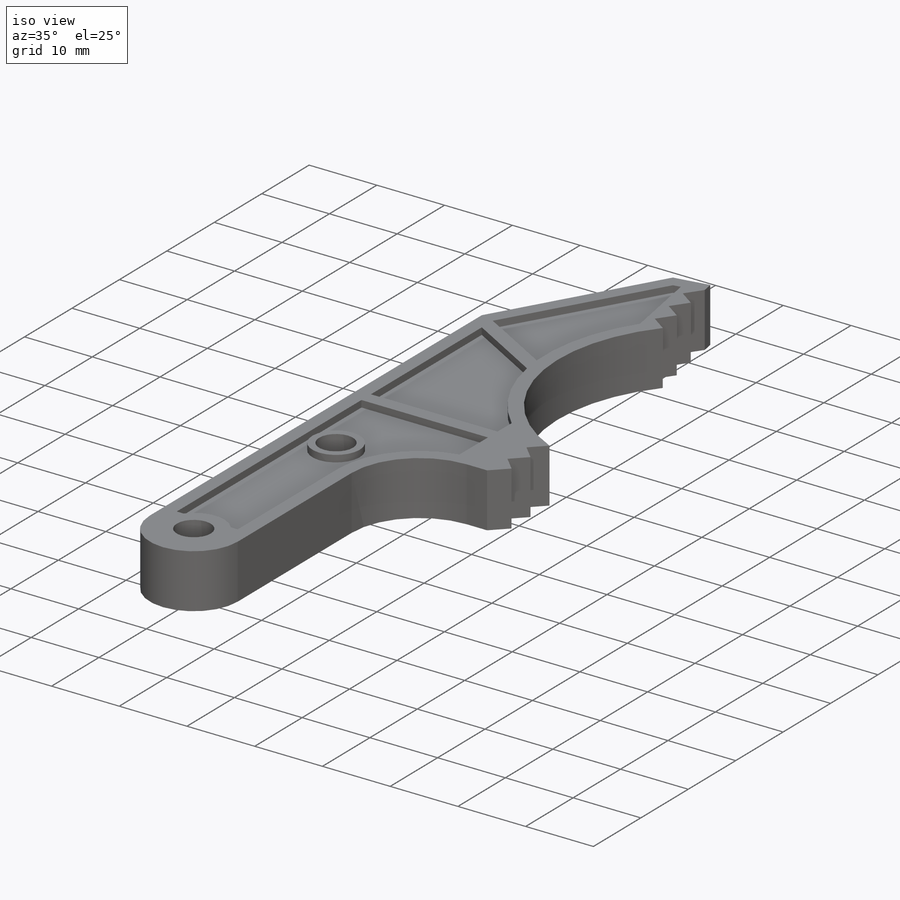
[diagram: iso view]
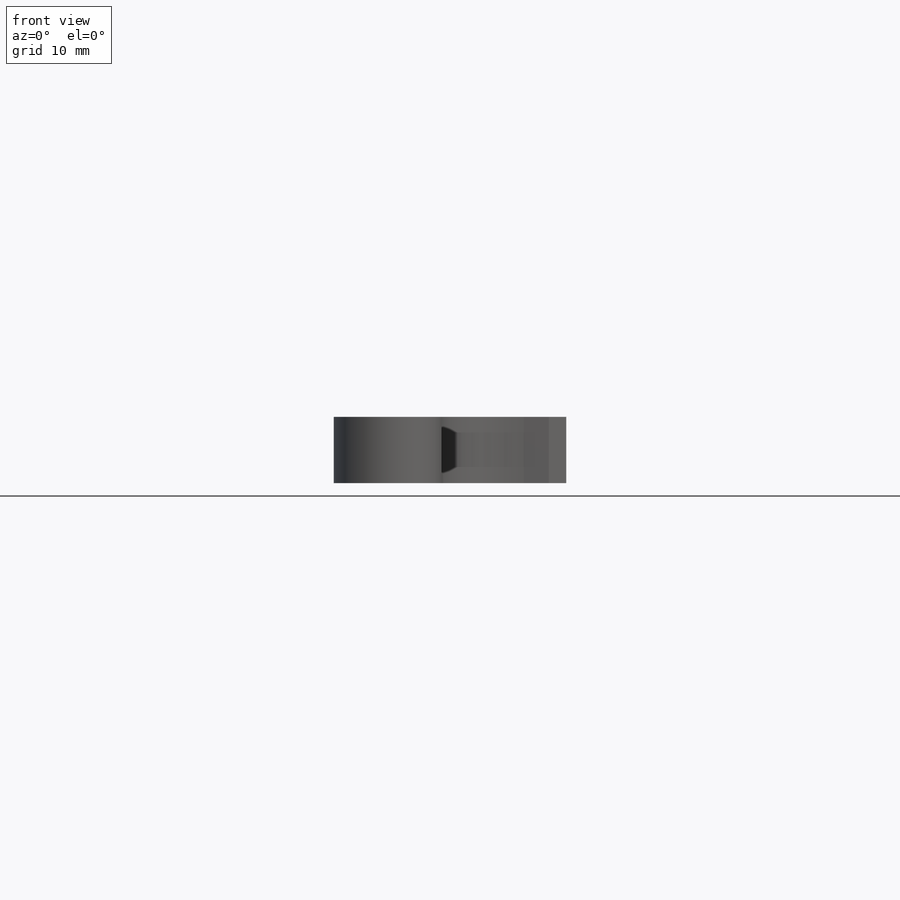
[diagram: front view]
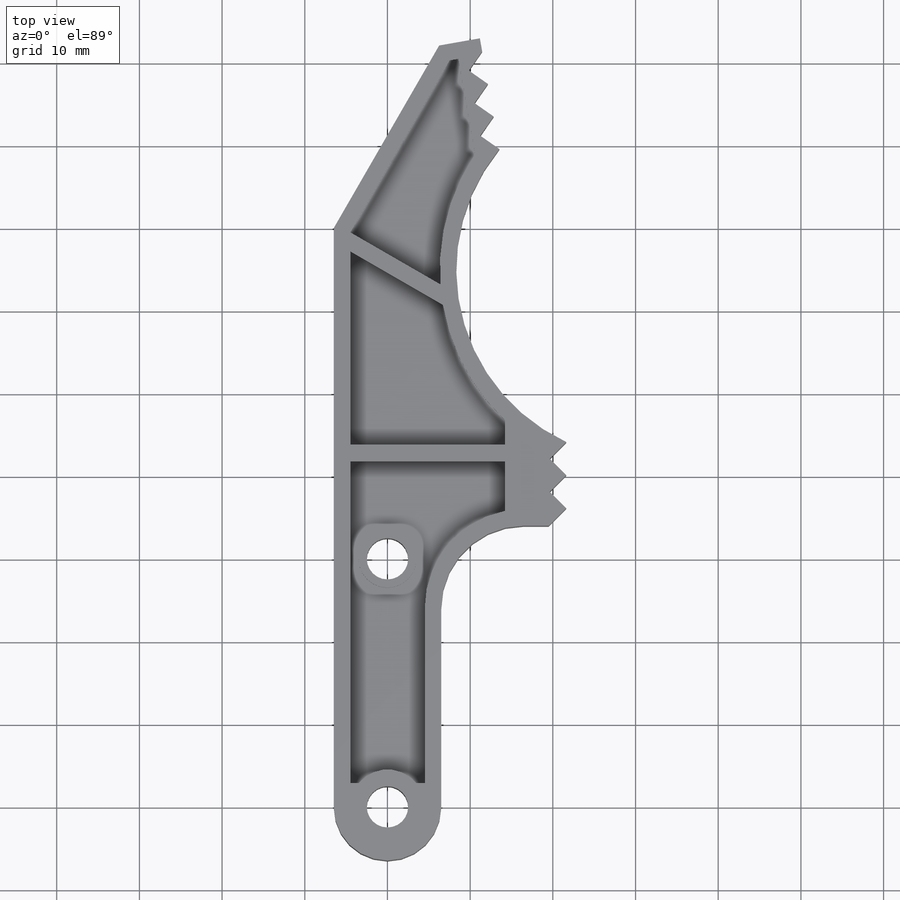
[diagram: top view]
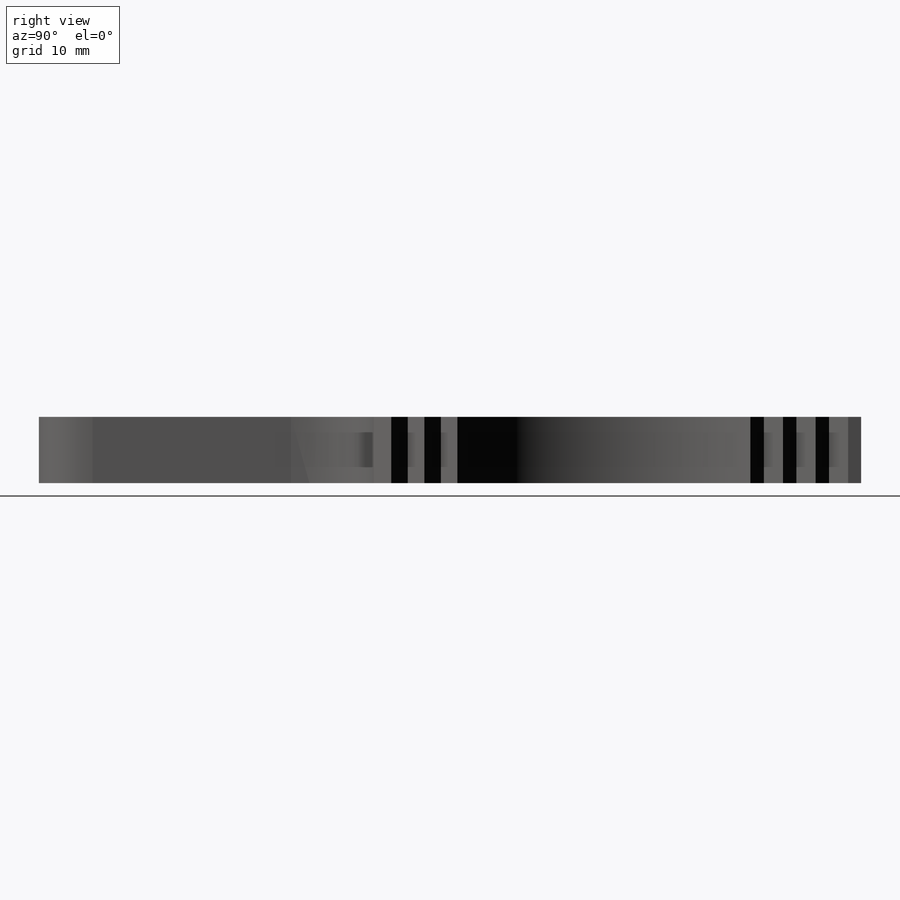
[diagram: right view]
SOLIDWORKS PART (.sldprt)
format: sldprt  version: not decoded by parser v0  size: 289,792 bytes
history: native  units: mm
features: plane x3, sketch x3, cut_extrude x2, material x1, extrude x1 (+8 scaffold rows collapsed)
feature tree (18):
  scaffold x8  (default folders/planes/origin — collapsed)
  material  "Material <sin especificar>"
  plane  "Alzado"
  plane  "Planta"
  plane  "Vista lateral"
  sketch  "Croquis2"  dims[c1.D1=6.5mm c1.D2=10.0mm c1.D5=3.0mm c1.D11=23.0mm c1.D13=5.0mm c1.D3=24.0mm c1.D4=70.0mm c1.D6=~69.196682mm c2.D6=150.0deg c2.D4=70.0mm c2.D5=25.5mm c2.D7=12.75mm c3.D7=130.0deg c3.D8=5.0mm c3.D9=~0.868241mm c4.D9=90.0deg c4.D10=1.6mm c4.D12=4.0mm c4.D13=1.5mm c4.D14=3.0mm c4.D15=3.0mm c5.D13=~3.939231mm c6.D13=90.0deg c7.D13=1.6mm c7.D16=30.0mm c7.D1=0.0mm]
  extrude  "Saliente-Extruir1"  Depth=8mm
  sketch  "Croquis3"  dims[D2=2.0mm D3=2.0mm D4=3.0mm D5=2.0mm D8=2.0mm D9=6.0mm D10=3.0mm D11=1.0mm D14=~23.380385mm D1=2.0mm D6=2.0mm D7=2.0mm D12=1.0mm D13=2.0mm]
  cut_extrude  "Cortar-Extruir1"  Depth=1mm
  sketch  "Croquis4"  dims[c1.D1=0.0mm c1.D2=0.0mm c1.D3=1.0mm c2.D1=0.0mm c2.D2=0.0mm c2.D3=0.0mm c2.D4=0.0mm]
  cut_extrude  "Cortar-Extruir2"  Depth=1mm
decode coverage: 6 of 6 modeling features carry decoded parameters
note: ~ marks probable driven/reference dimensions
note: suppression state not decoded; provenance and decode notes live in map.json
